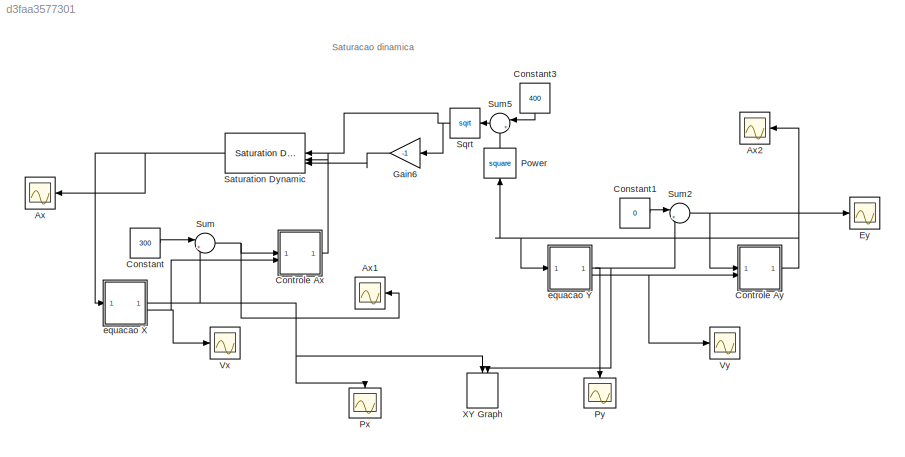
MODEL slx_d3faa3577301
KIND model
CONFIG AbsTol = auto
CONFIG EnableMultiTasking = off
CONFIG FixedStep = auto
CONFIG MaxStep = auto
CONFIG MinStep = auto
CONFIG RelTol = 1e-3
CONFIG SampleTimeConstraint = Unconstrained
CONFIG SolverName = VariableStepAuto
CONFIG StartTime = 0.0
CONFIG StopTime = 16
BLOCK [Scope] Ax
  Floating = off
  NameLocation = top
  NumInputPorts = 1
  ScopeSpecificationString = Simulink.scopes.TimeScopeBlockCfg('CurrentConfiguration', extmgr.ConfigurationSet(extmgr.Configuration('Core','General UI',true),extmgr.Configuration('Core','Source UI',true),extmgr.Configuration('Sources','WiredSimulink',true),extmgr.Configuration('Visuals','Time Domain',true,'SerializedDisplays',{struct('MinYLimReal','-19.63392','MaxYLimReal','21.54172','YLabelReal','','MinYLimMag','0.00000','Ma...<+1344ch>
BLOCK [Scope] Ax1
  Floating = off
  NameLocation = top
  NumInputPorts = 1
  ScopeSpecificationString = Simulink.scopes.TimeScopeBlockCfg('CurrentConfiguration', extmgr.ConfigurationSet(extmgr.Configuration('Core','General UI',true),extmgr.Configuration('Core','Source UI',true),extmgr.Configuration('Sources','WiredSimulink',true,'DataLoggingVariableName','ScopeData6'),extmgr.Configuration('Visuals','Time Domain',true,'SerializedDisplays',{struct('MinYLimReal','-32.06902','MaxYLimReal','286.89656','Y...<+1391ch>
BLOCK [Scope] Ax2
  Floating = off
  NameLocation = top
  NumInputPorts = 1
  ScopeSpecificationString = Simulink.scopes.TimeScopeBlockCfg('CurrentConfiguration', extmgr.ConfigurationSet(extmgr.Configuration('Core','General UI',true),extmgr.Configuration('Core','Source UI',true),extmgr.Configuration('Sources','WiredSimulink',true,'DataLoggingVariableName','ScopeData1'),extmgr.Configuration('Visuals','Time Domain',true,'SerializedDisplays',{struct('MinYLimReal','9.65724','MaxYLimReal','11.1492','YLabe...<+1421ch>
BLOCK [Constant] Constant
  Value = 300
BLOCK [Constant] Constant1
  Value = 0
BLOCK [Constant] Constant3
  NameLocation = left
  Value = 400
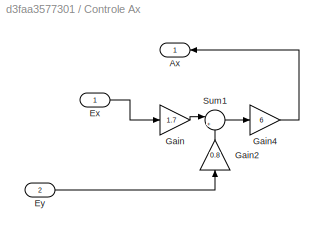
BLOCK [SubSystem] Controle Ax
BLOCK [Outport] Controle Ax/Ax
BLOCK [Inport] Controle Ax/Ex
BLOCK [Inport] Controle Ax/Ey
  Port = 2
BLOCK [Gain] Controle Ax/Gain
  Gain = 1.7
BLOCK [Gain] Controle Ax/Gain2
  Gain = 0.8
  NameLocation = right
BLOCK [Gain] Controle Ax/Gain4
  Gain = 6
BLOCK [Sum] Controle Ax/Sum1
  Inputs = |+-
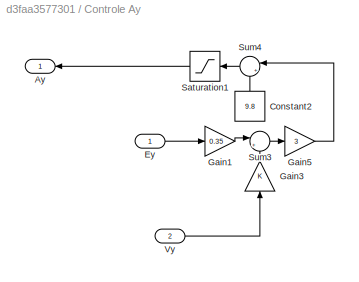
BLOCK [SubSystem] Controle Ay
BLOCK [Outport] Controle Ay/Ay
BLOCK [Constant] Controle Ay/Constant2
  NameLocation = right
  Value = 9.8
BLOCK [Inport] Controle Ay/Ey
BLOCK [Gain] Controle Ay/Gain1
  Gain = 0.35
BLOCK [Gain] Controle Ay/Gain3
  NameLocation = right
BLOCK [Gain] Controle Ay/Gain5
  Gain = 3
BLOCK [Saturate] Controle Ay/Saturation1
  LowerLimit = -11
  NameLocation = top
  UpperLimit = 11
BLOCK [Sum] Controle Ay/Sum3
  Inputs = |+-
BLOCK [Sum] Controle Ay/Sum4
  Inputs = |++
  NameLocation = top
BLOCK [Inport] Controle Ay/Vy
  Port = 2
BLOCK [Scope] Ey
  Floating = off
  NumInputPorts = 1
  ScopeSpecificationString = Simulink.scopes.TimeScopeBlockCfg('CurrentConfiguration', extmgr.ConfigurationSet(extmgr.Configuration('Core','General UI',true),extmgr.Configuration('Core','Source UI',true),extmgr.Configuration('Sources','WiredSimulink',true,'DataLoggingVariableName','ScopeData5'),extmgr.Configuration('Visuals','Time Domain',true,'SerializedDisplays',{struct('MinYLimReal','-44.99508','MaxYLimReal','4.9557','YLab...<+1365ch>
BLOCK [Gain] Gain6
  Gain = -1
  NameLocation = top
BLOCK [Math] Power
  NameLocation = right
  Operator = square
BLOCK [Scope] Px
  Floating = off
  NameLocation = left
  NumInputPorts = 1
  ScopeSpecificationString = Simulink.scopes.TimeScopeBlockCfg('CurrentConfiguration', extmgr.ConfigurationSet(extmgr.Configuration('Core','General UI',true),extmgr.Configuration('Core','Source UI',true),extmgr.Configuration('Sources','WiredSimulink',true,'DataLoggingVariableName','ScopeData1'),extmgr.Configuration('Visuals','Time Domain',true,'SerializedDisplays',{struct('MinYLimReal','299.42754','MaxYLimReal','299.53853','Y...<+1454ch>
BLOCK [Scope] Py
  Floating = off
  NameLocation = left
  NumInputPorts = 1
  ScopeSpecificationString = Simulink.scopes.TimeScopeBlockCfg('CurrentConfiguration', extmgr.ConfigurationSet(extmgr.Configuration('Core','General UI',true),extmgr.Configuration('Core','Source UI',true),extmgr.Configuration('Sources','WiredSimulink',true,'DataLoggingVariableName','ScopeData3'),extmgr.Configuration('Visuals','Time Domain',true,'SerializedDisplays',{struct('MinYLimReal','-4.9557','MaxYLimReal','44.99508','YLab...<+1443ch>
BLOCK [Reference] Saturation Dynamic  REF=simulink/Discontinuities/Saturation
Dynamic
  NameLocation = top
  SourceBlock = simulink/Discontinuities/Saturation\nDynamic
  SourceType = Saturation Dynamic
BLOCK [Sqrt] Sqrt
  NameLocation = top
BLOCK [Sum] Sum
  Inputs = |+-
BLOCK [Sum] Sum2
  Inputs = |+-
BLOCK [Sum] Sum5
  Inputs = |+-
  NameLocation = top
BLOCK [Scope] Vx
  Floating = off
  NumInputPorts = 1
  ScopeSpecificationString = Simulink.scopes.TimeScopeBlockCfg('CurrentConfiguration', extmgr.ConfigurationSet(extmgr.Configuration('Core','General UI',true),extmgr.Configuration('Core','Source UI',true),extmgr.Configuration('Sources','WiredSimulink',true,'DataLoggingVariableName','ScopeData2'),extmgr.Configuration('Visuals','Time Domain',true,'SerializedDisplays',{struct('MinYLimReal','-0.50115','MaxYLimReal','1.03685','YLab...<+1415ch>
BLOCK [Scope] Vy
  Floating = off
  NumInputPorts = 1
  ScopeSpecificationString = Simulink.scopes.TimeScopeBlockCfg('CurrentConfiguration', extmgr.ConfigurationSet(extmgr.Configuration('Core','General UI',true),extmgr.Configuration('Core','Source UI',true),extmgr.Configuration('Sources','WiredSimulink',true,'DataLoggingVariableName','ScopeData4'),extmgr.Configuration('Visuals','Time Domain',true,'SerializedDisplays',{struct('MinYLimReal','-16.58051','MaxYLimReal','1.82458','YLa...<+1375ch>
BLOCK [Record] XY Graph
  CompatibilityTag = XY
  FileSettingsInternal = {"entries":[{"content":{"excelSettings":{"content":{},"type":"Streamout.ExcelSettings"}},"type":"Streamout.FileSettingStorage","uuid":"1f06f097-43c7-4b81-bbc7-2c9f697b8832"}],"packageUris":["http://schema.mathworks.com/mf0/streamout_blocks/R2020a"],"version":"1.0"}
  Layout = [1 1]
  NameLocation = left
  SignalsInternal = {"entries":[{"content":{"signals":[{"content":{"blockPath":["equacoesMIC2/XY Graph"],"dimensions":[1],"domain":"equacoesMIC2/XY Graph","lineColor":"#a2142f","plots":[1],"port":1,"sid":[""],"signalID":217002,"signalName":"equacao X:1"},"type":"RecordBlkView.Signal","uuid":"5a1bc97a-f328-4992-ab4d-956ca500140f"},{"content":{"blockPath":["equacoesMIC2/XY Graph"],"dimensions":[1],"domain":"equacoesMIC...<+365ch>
  VisualizationBindings = {"xyplotplugin":{"info":[{"series":[{"bindingParametersList":[{"parameter":"X-Axis","signalID":217002,"signalName":"equacao X:1"},{"parameter":"Y-Axis","signalID":217006,"signalName":"equacao Y:1"}],"seriesID":35863}],"subplotID":1}]}}
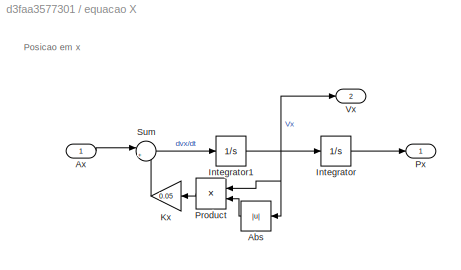
BLOCK [SubSystem] equacao X
BLOCK [Abs] equacao X/Abs
  NameLocation = top
  SaturateOnIntegerOverflow = off
BLOCK [Inport] equacao X/Ax
BLOCK [Integrator] equacao X/Integrator
  InitialCondition = 45
BLOCK [Integrator] equacao X/Integrator1
  InitialCondition = 13.2
BLOCK [Gain] equacao X/Kx
  Gain = 0.05
  NameLocation = top
BLOCK [Product] equacao X/Product
  NameLocation = top
BLOCK [Outport] equacao X/Px
BLOCK [Sum] equacao X/Sum
  Inputs = |+-
BLOCK [Outport] equacao X/Vx
  Port = 2
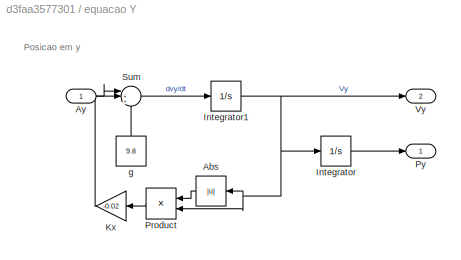
BLOCK [SubSystem] equacao Y
BLOCK [Abs] equacao Y/Abs
  NameLocation = top
  SaturateOnIntegerOverflow = off
BLOCK [Inport] equacao Y/Ay
BLOCK [Integrator] equacao Y/Integrator
  InitialCondition = 40
BLOCK [Integrator] equacao Y/Integrator1
  InitialCondition = -14.74
BLOCK [Gain] equacao Y/Kx
  Gain = -0.02
  NameLocation = top
BLOCK [Product] equacao Y/Product
  NameLocation = top
BLOCK [Outport] equacao Y/Py
BLOCK [Sum] equacao Y/Sum
  Inputs = |++-
BLOCK [Outport] equacao Y/Vy
  Port = 2
BLOCK [Constant] equacao Y/g
  NameLocation = right
  Value = 9.8
ANNOTATION (root): Saturacao dinamica
ANNOTATION equacao X: Posicao em x
ANNOTATION equacao Y: Posicao em y
LINE Constant1:1 -> Sum2:1
LINE Constant3:1 -> Sum5:1
LINE Constant:1 -> Sum:1
LINE Controle Ax/Ex:1 -> Controle Ax/Gain:1
LINE Controle Ax/Ey:1 -> Controle Ax/Gain2:1
LINE Controle Ax/Gain2:1 -> Controle Ax/Sum1:2
LINE Controle Ax/Gain4:1 -> Controle Ax/Ax:1
LINE Controle Ax/Gain:1 -> Controle Ax/Sum1:1
LINE Controle Ax/Sum1:1 -> Controle Ax/Gain4:1
LINE Controle Ax:1 -> Saturation Dynamic:2
LINE Controle Ay/Constant2:1 -> Controle Ay/Sum4:2
LINE Controle Ay/Ey:1 -> Controle Ay/Gain1:1
LINE Controle Ay/Gain1:1 -> Controle Ay/Sum3:1
LINE Controle Ay/Gain3:1 -> Controle Ay/Sum3:2
LINE Controle Ay/Gain5:1 -> Controle Ay/Sum4:1
LINE Controle Ay/Saturation1:1 -> Controle Ay/Ay:1
LINE Controle Ay/Sum3:1 -> Controle Ay/Gain5:1
LINE Controle Ay/Sum4:1 -> Controle Ay/Saturation1:1
LINE Controle Ay/Vy:1 -> Controle Ay/Gain3:1
NET Controle Ay:1 -> Ax2:1, Power:1, equacao Y:1
LINE Gain6:1 -> Saturation Dynamic:3
LINE Power:1 -> Sum5:2
NET Saturation Dynamic:1 -> Ax:1, equacao X:1
NET Sqrt:1 -> Gain6:1, Saturation Dynamic:1
NET Sum2:1 -> Controle Ay:1, Ey:1
LINE Sum5:1 -> Sqrt:1
NET Sum:1 -> Ax1:1, Controle Ax:1
LINE equacao X/Abs:1 -> equacao X/Product:2
LINE equacao X/Ax:1 -> equacao X/Sum:1
NET equacao X/Integrator1:1 -> equacao X/Abs:1, equacao X/Integrator:1, equacao X/Product:1, equacao X/Vx:1
LINE equacao X/Integrator:1 -> equacao X/Px:1
LINE equacao X/Kx:1 -> equacao X/Sum:2
LINE equacao X/Product:1 -> equacao X/Kx:1
LINE equacao X/Sum:1 -> equacao X/Integrator1:1
NET equacao X:1 -> Px:1, Sum:2, XY Graph:1
NET equacao X:2 -> Controle Ax:2, Vx:1
LINE equacao Y/Abs:1 -> equacao Y/Product:1
LINE equacao Y/Ay:1 -> equacao Y/Sum:1
NET equacao Y/Integrator1:1 -> equacao Y/Abs:1, equacao Y/Integrator:1, equacao Y/Product:2, equacao Y/Vy:1
LINE equacao Y/Integrator:1 -> equacao Y/Py:1
LINE equacao Y/Kx:1 -> equacao Y/Sum:2
LINE equacao Y/Product:1 -> equacao Y/Kx:1
LINE equacao Y/Sum:1 -> equacao Y/Integrator1:1
LINE equacao Y/g:1 -> equacao Y/Sum:3
NET equacao Y:1 -> Py:1, Sum2:2, XY Graph:2
NET equacao Y:2 -> Controle Ay:2, Vy:1
note: NET lines group one-source signal fan-out (src -> all destinations, sorted); 1:1 wires keep LINE
